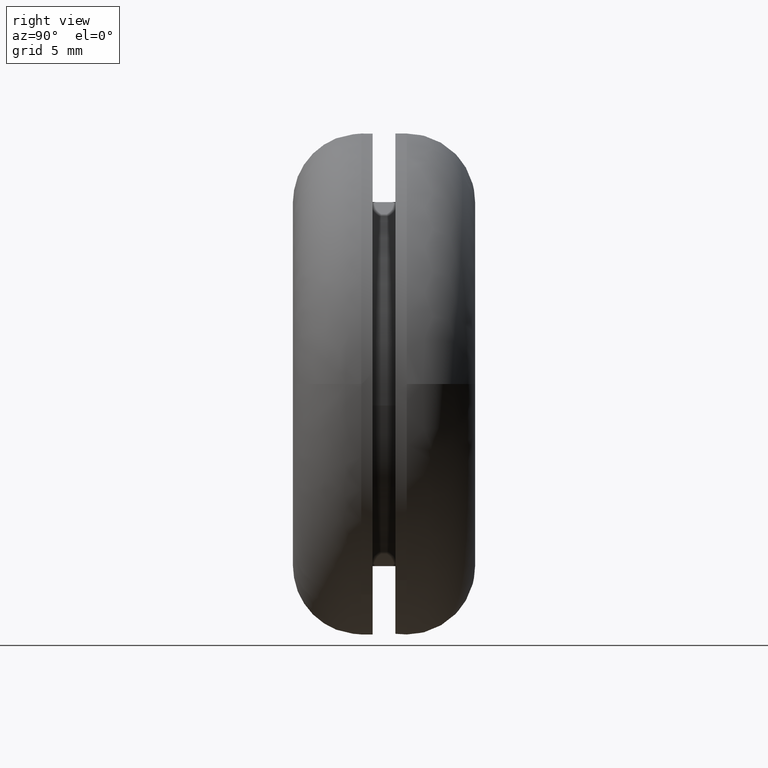
[diagram: clean part render]
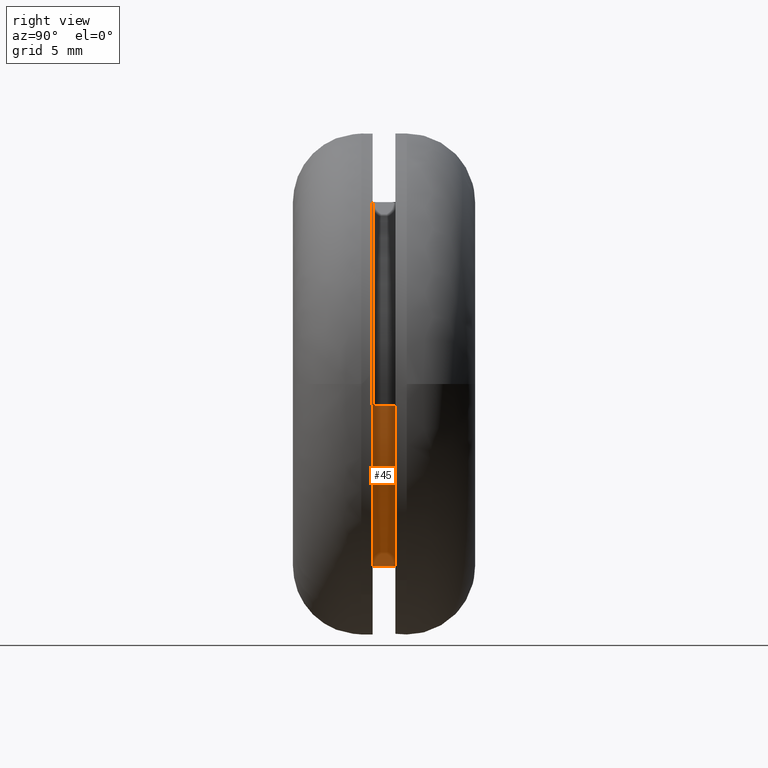
[diagram: same view with one face highlighted and labeled with its STEP entity id]
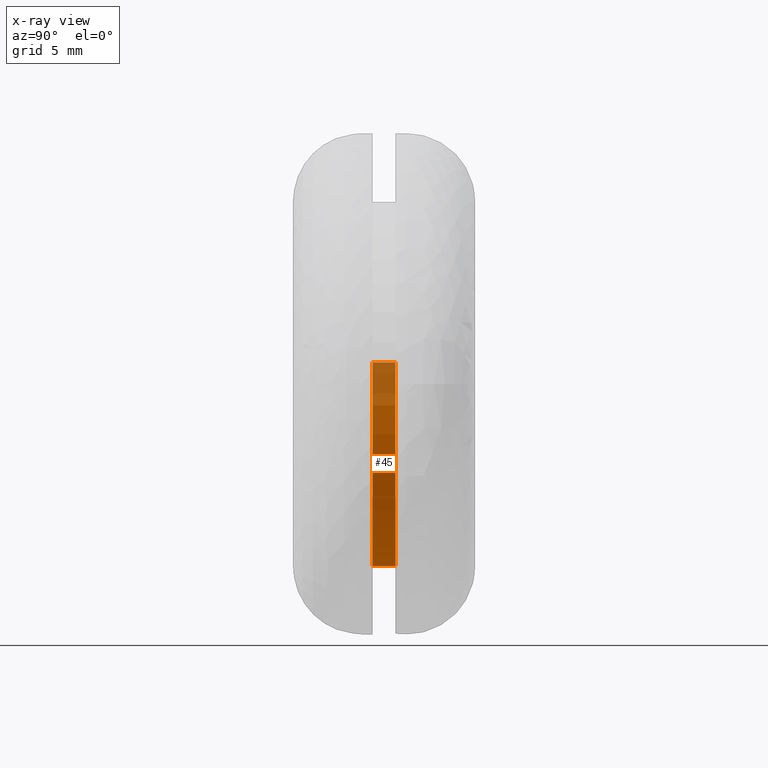
[diagram: x-ray of the same camera — body ghosted, the highlighted face saturated]
A machine part, right view. The second image highlights one B-rep face of the part: STEP entity #45.
The next image is the same camera in x-ray: the body ghosted, the highlighted face saturated — about 21% of this face is hidden behind the body in this view.
In plain terms, the highlighted cylindrical surface (partial cylindrical patch) has radius 8 mm, axis along (0, 1, 0).
Its self-contained STEP definition (entity closure, byte-faithful):
#45=ADVANCED_FACE('',(#111),#110,.T.);
#110=CYLINDRICAL_SURFACE('',#252,8.00000000000E+000);
#111=FACE_OUTER_BOUND('',#253,.T.);
#249=CARTESIAN_POINT('',(-7.94417728468E-017,4.52500000000E+000,2.52939892545E-015));
#250=DIRECTION('',(9.12103150825E-016,1.00000000000E+000,8.14372433406E-015));
#251=DIRECTION('',(-9.93009526364E-001,-5.55111512313E-017,1.18034234657E-001));
#252=AXIS2_PLACEMENT_3D('',#249,#250,#251);
#253=EDGE_LOOP('',(#416,#417,#418,#419,#420,#421));
#416=ORIENTED_EDGE('',*,*,#493,.F.);
#417=ORIENTED_EDGE('',*,*,#495,.F.);
#418=ORIENTED_EDGE('',*,*,#514,.T.);
#419=ORIENTED_EDGE('',*,*,#499,.T.);
#420=ORIENTED_EDGE('',*,*,#501,.T.);
#421=ORIENTED_EDGE('',*,*,#515,.F.);
#493=EDGE_CURVE('',#562,#563,#564,.T.);
#495=EDGE_CURVE('',#570,#562,#577,.T.);
#499=EDGE_CURVE('',#604,#605,#606,.T.);
#501=EDGE_CURVE('',#605,#612,#619,.T.);
#514=EDGE_CURVE('',#570,#604,#709,.T.);
#515=EDGE_CURVE('',#563,#612,#715,.T.);
#562=VERTEX_POINT('',#901);
#563=VERTEX_POINT('',#902);
#564=CIRCLE('',#906,8.00000000000E+000);
#570=VERTEX_POINT('',#907);
#577=CIRCLE('',#915,8.00000000000E+000);
#604=VERTEX_POINT('',#931);
#605=VERTEX_POINT('',#932);
#606=CIRCLE('',#936,8.00000000000E+000);
#612=VERTEX_POINT('',#937);
#619=CIRCLE('',#945,8.00000000000E+000);
#709=(BOUNDED_CURVE() B_SPLINE_CURVE(1,(#1006,#1007),.UNSPECIFIED.,.F.,.F.) B_SPLINE_CURVE_WITH_KNOTS((2,2),(8.33333730703E-002,9.16666640476E-001),.UNSPECIFIED.) CURVE() GEOMETRIC_REPRESENTATION_ITEM() RATIONAL_B_SPLINE_CURVE((1.00000000000E+000,1.00000000000E+000)) REPRESENTATION_ITEM('') );
#715=(BOUNDED_CURVE() B_SPLINE_CURVE(1,(#1008,#1009),.UNSPECIFIED.,.F.,.F.) B_SPLINE_CURVE_WITH_KNOTS((2,2),(8.33333333352E-002,9.16666666667E-001),.UNSPECIFIED.) CURVE() GEOMETRIC_REPRESENTATION_ITEM() RATIONAL_B_SPLINE_CURVE((7.50000000000E-001,7.50000000000E-001)) REPRESENTATION_ITEM('') );
#901=CARTESIAN_POINT('',(-2.88657986403E-015,3.50000000000E+000,-8.00000000000E+000));
#902=CARTESIAN_POINT('',(7.94391288835E+000,3.50000000000E+000,-9.45646880360E-001));
#903=CARTESIAN_POINT('',(7.68718422250E-013,3.50000000000E+000,1.68975944348E-012));
#904=DIRECTION('',(3.99719002331E-014,-1.00000000000E+000,2.69498410015E-013));
#905=DIRECTION('',(-9.60898027813E-014,-2.69498410015E-013,-1.00000000000E+000));
#906=AXIS2_PLACEMENT_3D('',#903,#904,#905);
#907=CARTESIAN_POINT('',(-7.94407622006E+000,3.50000000000E+000,9.44273800291E-001));
#912=CARTESIAN_POINT('',(7.68718422250E-013,3.50000000000E+000,1.68975944348E-012));
#913=DIRECTION('',(3.99719002331E-014,-1.00000000000E+000,2.69498410015E-013));
#914=DIRECTION('',(-9.60898027813E-014,-2.69498410015E-013,-1.00000000000E+000));
#915=AXIS2_PLACEMENT_3D('',#912,#913,#914);
#931=CARTESIAN_POINT('',(-7.94407622006E+000,4.50000000000E+000,9.44273800291E-001));
#932=CARTESIAN_POINT('',(-1.55431223448E-015,4.50000000000E+000,-8.00000000000E+000));
#933=CARTESIAN_POINT('',(7.49622586227E-013,4.50000000000E+000,1.64623870091E-012));
#934=DIRECTION('',(-6.02302498344E-017,-1.00000000000E+000,-5.06712981367E-016));
#935=DIRECTION('',(-9.35640454003E-014,5.06712981367E-016,-1.00000000000E+000));
#936=AXIS2_PLACEMENT_3D('',#933,#934,#935);
#937=CARTESIAN_POINT('',(7.94391288835E+000,4.50000000000E+000,-9.45646880360E-001));
#942=CARTESIAN_POINT('',(7.49622586227E-013,4.50000000000E+000,1.64623870091E-012));
#943=DIRECTION('',(-6.02302498344E-017,-1.00000000000E+000,-5.06712981367E-016));
#944=DIRECTION('',(-9.35640454003E-014,5.06712981367E-016,-1.00000000000E+000));
#945=AXIS2_PLACEMENT_3D('',#942,#943,#944);
#1006=CARTESIAN_POINT('',(-7.94407621091E+000,3.50000004768E+000,9.44273877254E-001));
#1007=CARTESIAN_POINT('',(-7.94407621091E+000,4.49999996857E+000,9.44273877254E-001));
#1008=CARTESIAN_POINT('',(7.94407621091E+000,3.50000000000E+000,-9.44273877254E-001));
#1009=CARTESIAN_POINT('',(7.94407621091E+000,4.50000000000E+000,-9.44273877254E-001));